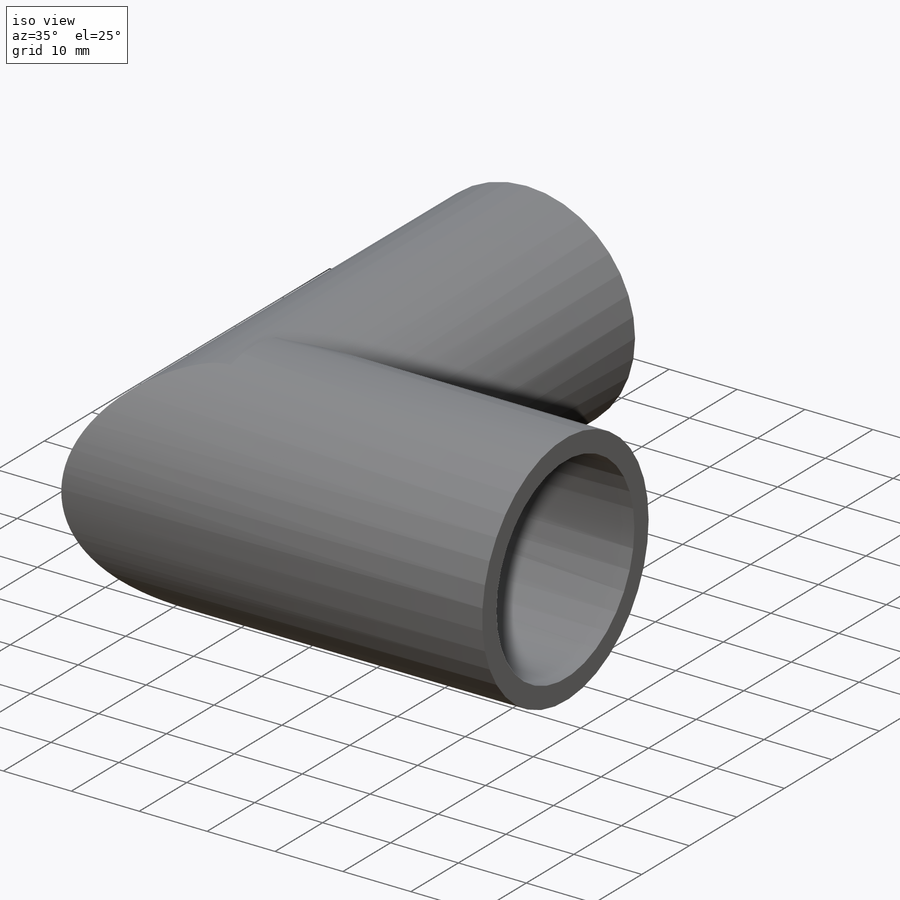
[diagram: iso view]
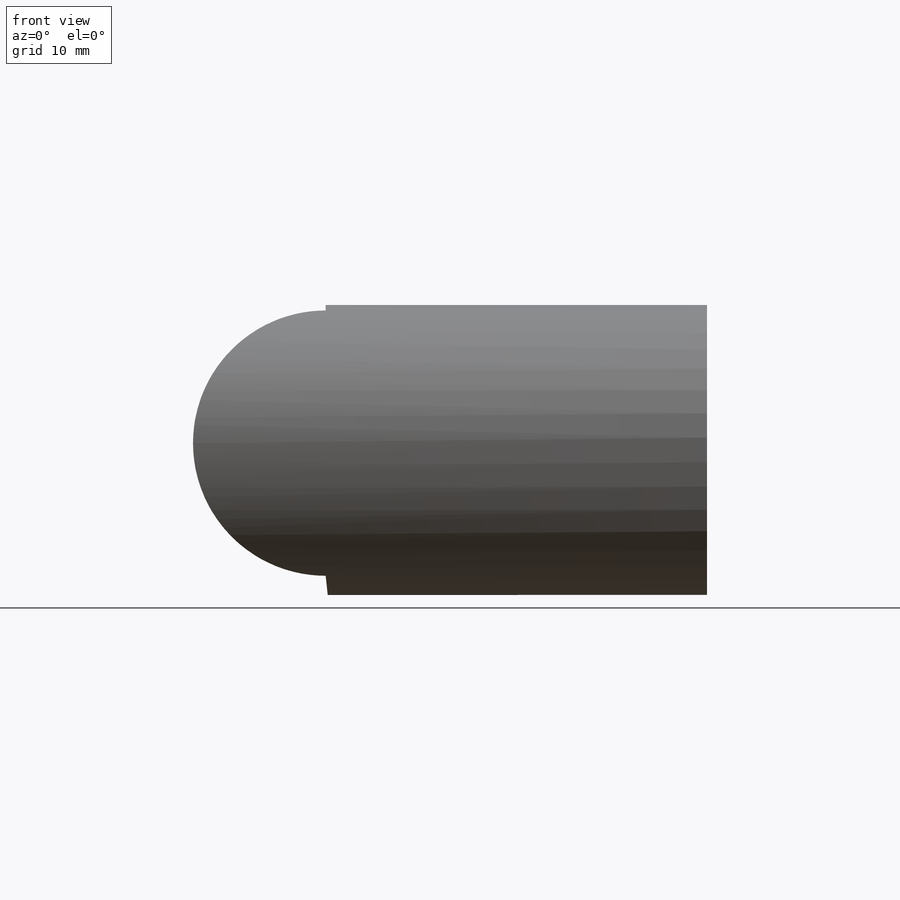
[diagram: front view]
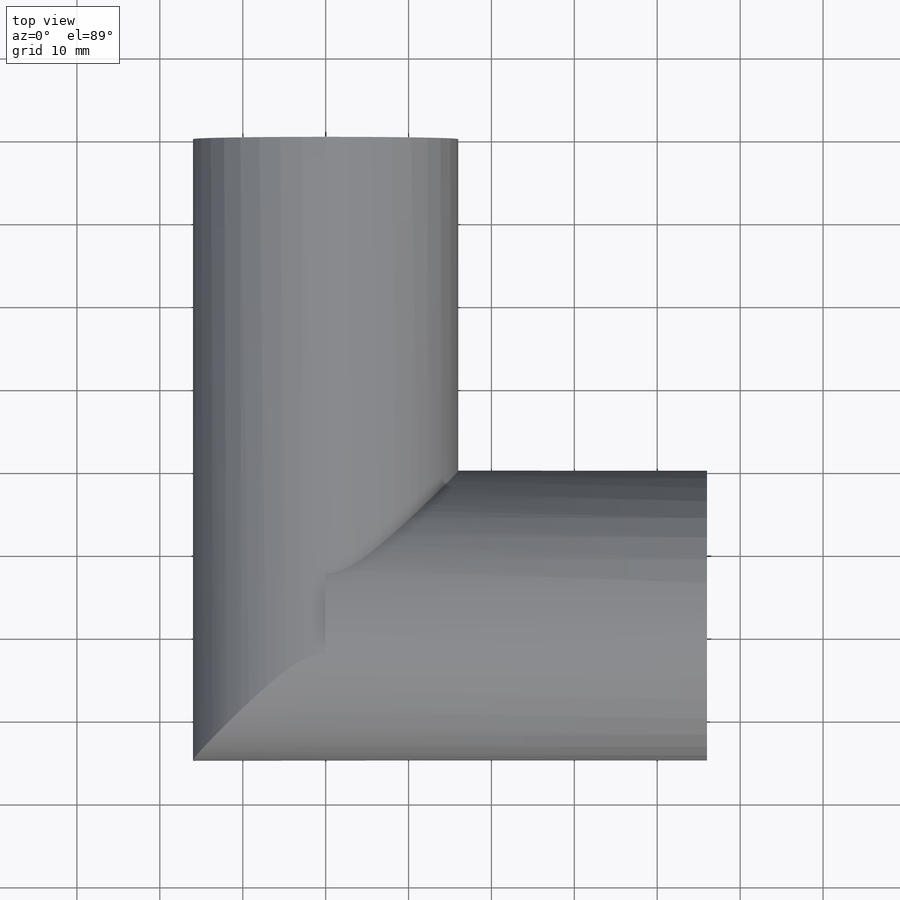
[diagram: top view]
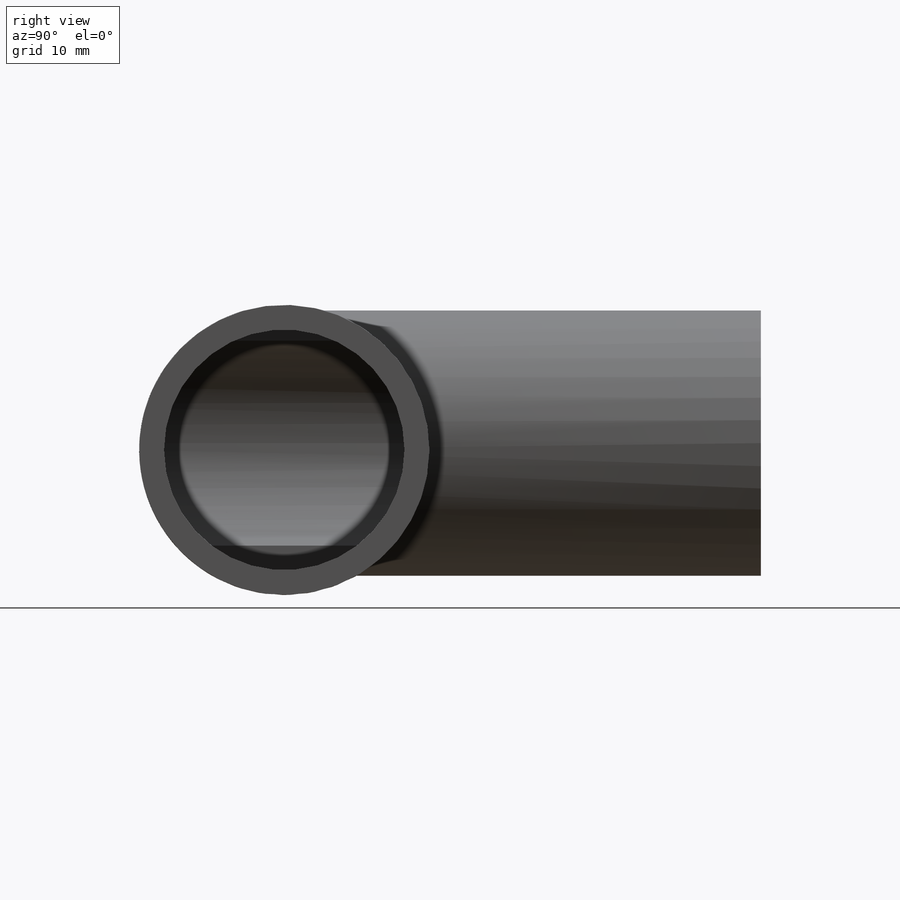
[diagram: right view]
SOLIDWORKS PART (.sldprt)
format: sldprt  version: not decoded by parser v0  size: 267,264 bytes
history: native  units: mm
features: material x7, cut_extrude x4, extrude x2, plane x1, sketch x1 (+16 scaffold rows collapsed)
feature tree (31):
  scaffold x16  (default folders/planes/origin — collapsed)
  material  "材质 <未指定>"
  material  "草图3"
  material  "草图4"
  material  "草图5"
  material  "草图6"
  material  "草图7"
  material  "草图8"
  plane  "前视基准面"
  sketch  "草图1"  dims[D1=~23.67167mm]
  extrude  "凸台-拉伸1"  Depth=75mm
  extrude  "凸台-拉伸3"  Depth=30mm
  cut_extrude  "切除-拉伸1"  Depth=30mm
  cut_extrude  "切除-拉伸3"  Depth=30mm
  cut_extrude  "切除-拉伸4"  Depth=30mm
  cut_extrude  "切除-拉伸5"  Depth=50mm
decode coverage: 7 of 7 modeling features carry decoded parameters
note: ~ marks probable driven/reference dimensions
note: suppression state not decoded; provenance and decode notes live in map.json
